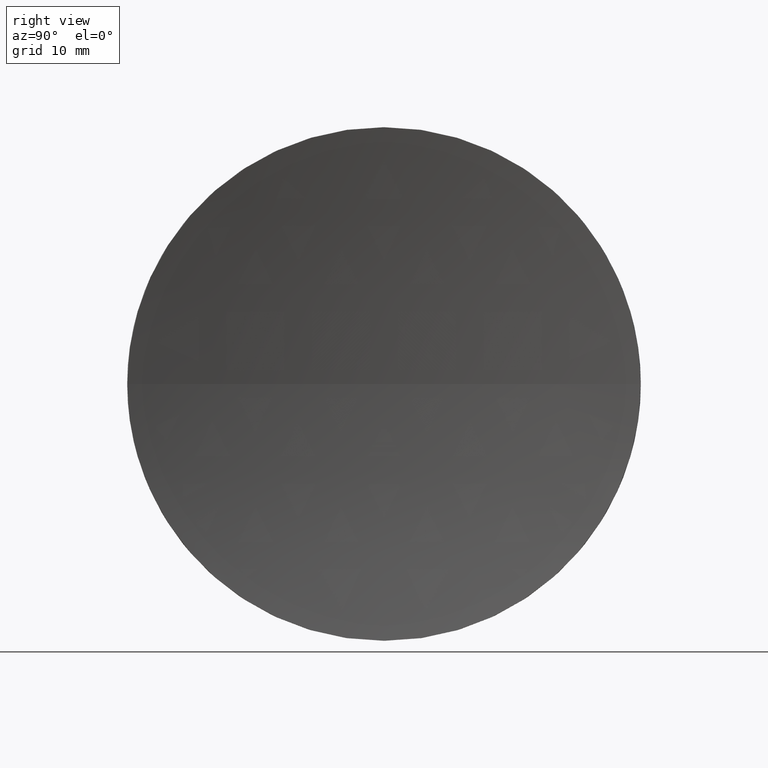
[diagram: clean part render]
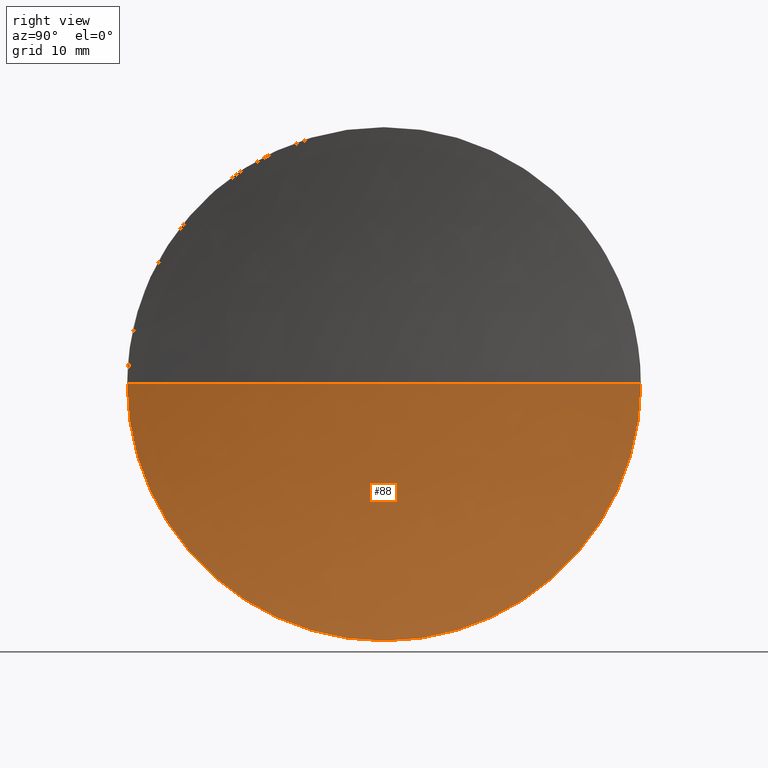
[diagram: same view with one face highlighted and labeled with its STEP entity id]
A machine part, right view. The second image highlights one B-rep face of the part: STEP entity #88.
In plain terms, the highlighted spherical surface has radius 200 mm.
Its self-contained STEP definition (entity closure, byte-faithful):
#4 = DIRECTION ( 'NONE',  ( -1.000000000000000000, -0.0000000000000000000, -0.0000000000000000000 ) ) ;
#7 = ORIENTED_EDGE ( 'NONE', *, *, #78, .F. ) ;
#9 = DIRECTION ( 'NONE',  ( 0.0000000000000000000, 1.224646799147353200E-016, -1.000000000000000000 ) ) ;
#21 = ORIENTED_EDGE ( 'NONE', *, *, #69, .T. ) ;
#23 = VERTEX_POINT ( 'NONE', #99 ) ;
#33 = ORIENTED_EDGE ( 'NONE', *, *, #116, .F. ) ;
#34 = DIRECTION ( 'NONE',  ( 0.0000000000000000000, 0.0000000000000000000, 1.000000000000000000 ) ) ;
#36 = AXIS2_PLACEMENT_3D ( 'NONE', #144, #4, #34 ) ;
#40 = SPHERICAL_SURFACE ( 'NONE', #182, 200.0000000000000000 ) ;
#44 = CIRCLE ( 'NONE', #36, 37.50000000000000700 ) ;
#45 = EDGE_LOOP ( 'NONE', ( #7, #77, #33, #21 ) ) ;
#46 = CARTESIAN_POINT ( 'NONE',  ( 239.1996119313446300, 138.7560422467447600, 0.0000000000000000000 ) ) ;
#63 = VERTEX_POINT ( 'NONE', #101 ) ;
#65 = AXIS2_PLACEMENT_3D ( 'NONE', #120, #66, #166 ) ;
#66 = DIRECTION ( 'NONE',  ( 0.0000000000000000000, 0.0000000000000000000, 1.000000000000000000 ) ) ;
#69 = EDGE_CURVE ( 'NONE', #89, #74, #130, .T. ) ;
#70 = DIRECTION ( 'NONE',  ( -1.000000000000000000, -0.0000000000000000000, -0.0000000000000000000 ) ) ;
#74 = VERTEX_POINT ( 'NONE', #46 ) ;
#75 = DIRECTION ( 'NONE',  ( 0.0000000000000000000, 0.0000000000000000000, -1.000000000000000000 ) ) ;
#76 = DIRECTION ( 'NONE',  ( 0.0000000000000000000, 1.000000000000000000, 0.0000000000000000000 ) ) ;
#77 = ORIENTED_EDGE ( 'NONE', *, *, #161, .F. ) ;
#78 = EDGE_CURVE ( 'NONE', #63, #74, #124, .T. ) ;
#88 = ADVANCED_FACE ( 'NONE', ( #92 ), #40, .F. ) ;
#89 = VERTEX_POINT ( 'NONE', #181 ) ;
#90 = AXIS2_PLACEMENT_3D ( 'NONE', #91, #9, #106 ) ;
#91 = CARTESIAN_POINT ( 'NONE',  ( 439.1996119313446300, 138.7560422467447600, 0.0000000000000000000 ) ) ;
#92 = FACE_OUTER_BOUND ( 'NONE', #45, .T. ) ;
#99 = CARTESIAN_POINT ( 'NONE',  ( 242.7466913625733000, 138.7560422467448700, -37.50000000000000700 ) ) ;
#100 = AXIS2_PLACEMENT_3D ( 'NONE', #110, #70, #145 ) ;
#101 = CARTESIAN_POINT ( 'NONE',  ( 242.7466913625733300, 101.2560422467446800, -4.592425496802582300E-015 ) ) ;
#106 = DIRECTION ( 'NONE',  ( 0.0000000000000000000, 1.000000000000000000, 1.224646799147353200E-016 ) ) ;
#110 = CARTESIAN_POINT ( 'NONE',  ( 242.7466913625733000, 138.7560422467448700, 0.0000000000000000000 ) ) ;
#116 = EDGE_CURVE ( 'NONE', #89, #23, #155, .T. ) ;
#120 = CARTESIAN_POINT ( 'NONE',  ( 439.1996119313446300, 138.7560422467447600, 0.0000000000000000000 ) ) ;
#124 = CIRCLE ( 'NONE', #90, 200.0000000000000000 ) ;
#130 = CIRCLE ( 'NONE', #65, 200.0000000000000000 ) ;
#138 = CARTESIAN_POINT ( 'NONE',  ( 439.1996119313446300, 138.7560422467447600, 0.0000000000000000000 ) ) ;
#144 = CARTESIAN_POINT ( 'NONE',  ( 242.7466913625733000, 138.7560422467448700, 0.0000000000000000000 ) ) ;
#145 = DIRECTION ( 'NONE',  ( 0.0000000000000000000, 0.0000000000000000000, 1.000000000000000000 ) ) ;
#155 = CIRCLE ( 'NONE', #100, 37.50000000000000700 ) ;
#161 = EDGE_CURVE ( 'NONE', #23, #63, #44, .T. ) ;
#166 = DIRECTION ( 'NONE',  ( 1.000000000000000000, 0.0000000000000000000, 0.0000000000000000000 ) ) ;
#181 = CARTESIAN_POINT ( 'NONE',  ( 242.7466913625733300, 176.2560422467449500, 0.0000000000000000000 ) ) ;
#182 = AXIS2_PLACEMENT_3D ( 'NONE', #138, #75, #76 ) ;